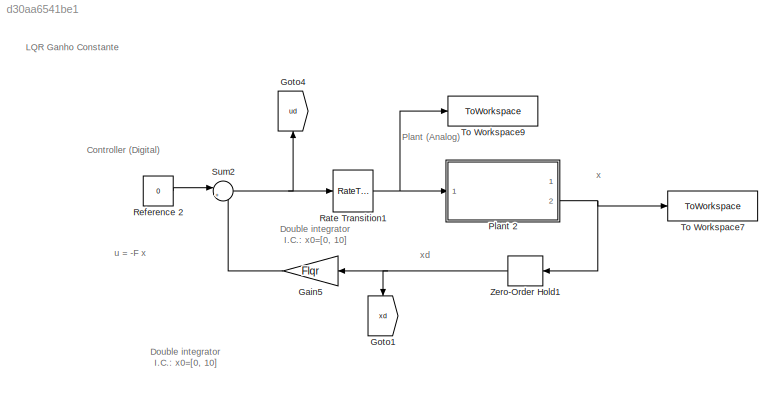
MODEL slx_d30aa6541be1
KIND model
CONFIG AbsTol = auto
CONFIG EnableMultiTasking = off
CONFIG FixedStep = 1e-3
CONFIG MaxStep = auto
CONFIG MinStep = auto
CONFIG RelTol = 1e-3
CONFIG SampleTimeConstraint = Unconstrained
CONFIG SolverName = ode4
CONFIG StartTime = 0.0
CONFIG StopTime = 30
BLOCK [Gain] Gain5
  Gain = Flqr
  Multiplication = Matrix(K*u)
BLOCK [Goto] Goto1
  GotoTag = xd
  NameLocation = left
  TagVisibility = global
BLOCK [Goto] Goto4
  GotoTag = ud
  NameLocation = left
  TagVisibility = global
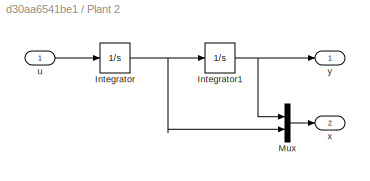
BLOCK [SubSystem] Plant 2
  Ports = [1, 2]
  RequestExecContextInheritance = off
BLOCK [Integrator] Plant 2/Integrator
  InitialCondition = x20
  Ports = [1, 1]
BLOCK [Integrator] Plant 2/Integrator1
  InitialCondition = x10
  Ports = [1, 1]
BLOCK [Mux] Plant 2/Mux
  DisplayOption = bar
  Inputs = 2
  Ports = [2, 1]
BLOCK [Inport] Plant 2/u
BLOCK [Outport] Plant 2/x
  Port = 2
BLOCK [Outport] Plant 2/y
BLOCK [RateTransition] Rate Transition1
  Integrity = off
  OutPortSampleTime = h
BLOCK [Constant] Reference 2
  SampleTime = h
  Value = 0
BLOCK [Sum] Sum2
  Inputs = |+-
  Ports = [2, 1]
BLOCK [ToWorkspace] To Workspace7
  FixptAsFi = on
  MaxDataPoints = inf
  Ports = [1]
  SampleTime = -1
  SaveFormat = Timeseries
  VariableName = x
BLOCK [ToWorkspace] To Workspace9
  FixptAsFi = on
  MaxDataPoints = inf
  Ports = [1]
  SampleTime = -1
  SaveFormat = Timeseries
  VariableName = u
BLOCK [ZeroOrderHold] Zero-Order Hold1
  SampleTime = h
ANNOTATION (root): x
ANNOTATION (root): xd
ANNOTATION (root): u = -F x
ANNOTATION (root): Controller (Digital)
ANNOTATION (root): Double integrator I.C.: x0=[0, 10]
ANNOTATION (root): LQR Ganho Constante
ANNOTATION (root): Plant (Analog)
LINE Gain5:1 -> Sum2:2
NET Plant 2/Integrator1:1 -> Plant 2/Mux:1, Plant 2/y:1
NET Plant 2/Integrator:1 -> Plant 2/Integrator1:1, Plant 2/Mux:2
LINE Plant 2/Mux:1 -> Plant 2/x:1
LINE Plant 2/u:1 -> Plant 2/Integrator:1
NET Plant 2:2 -> To Workspace7:1, Zero-Order Hold1:1
NET Rate Transition1:1 -> Plant 2:1, To Workspace9:1
LINE Reference 2:1 -> Sum2:1
NET Sum2:1 -> Goto4:1, Rate Transition1:1
NET Zero-Order Hold1:1 -> Gain5:1, Goto1:1
note: NET lines group one-source signal fan-out (src -> all destinations, sorted); 1:1 wires keep LINE
